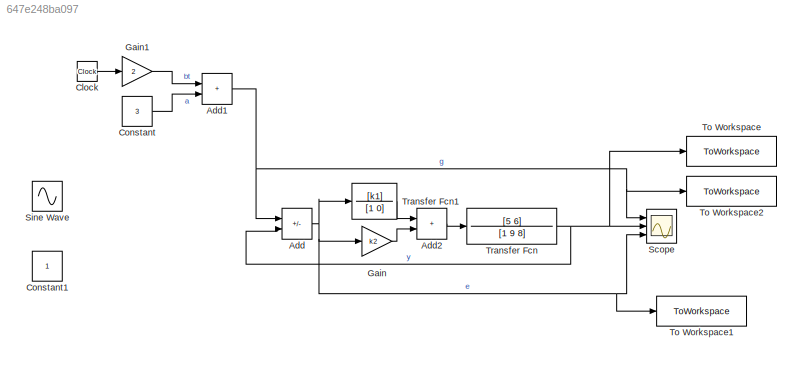
MODEL slx_647e248ba097
KIND model
CONFIG AbsTol = auto
CONFIG EnableMultiTasking = off
CONFIG FixedStep = 0.001
CONFIG MaxStep = auto
CONFIG MinStep = auto
CONFIG RelTol = 1e-3
CONFIG SampleTimeConstraint = Unconstrained
CONFIG SolverName = FixedStepAuto
CONFIG StartTime = 0.0
CONFIG StopTime = 10.0
BLOCK [Sum] Add
  IconShape = rectangular
  Inputs = +-
  Ports = [2, 1]
BLOCK [Sum] Add1
  IconShape = rectangular
  Ports = [2, 1]
BLOCK [Sum] Add2
  IconShape = rectangular
  Ports = [2, 1]
BLOCK [Clock] Clock
BLOCK [Constant] Constant
  SampleTime = -1
  Value = 3
BLOCK [Constant] Constant1
  SampleTime = -1
BLOCK [Gain] Gain
  Gain = k2
BLOCK [Gain] Gain1
  Gain = 2
BLOCK [Scope] Scope
  Floating = off
  NumInputPorts = 3
  Ports = [3]
  ScopeSpecificationString = Simulink.scopes.TimeScopeBlockCfg('CurrentConfiguration', extmgr.ConfigurationSet(extmgr.Configuration('Core','General UI',true),extmgr.Configuration('Core','Source UI',true),extmgr.Configuration('Sources','WiredSimulink',true),extmgr.Configuration('Visuals','Time Domain',true,'SerializedDisplays',{struct('MinYLimReal','-5.375','MaxYLimReal','48.375','YLabelReal','','MinYLimMag','0.00000','MaxYLim...<+1351ch>
BLOCK [Sin] Sine Wave
  Amplitude = 2
  Phase = 2
  Ports = [0, 1]
  SampleTime = 0
BLOCK [ToWorkspace] To Workspace
  FixptAsFi = on
  MaxDataPoints = inf
  Ports = [1]
  SampleTime = -1
  SaveFormat = Timeseries
  VariableName = y
BLOCK [ToWorkspace] To Workspace1
  FixptAsFi = on
  MaxDataPoints = inf
  Ports = [1]
  SampleTime = -1
  SaveFormat = Timeseries
  VariableName = e
BLOCK [ToWorkspace] To Workspace2
  FixptAsFi = on
  MaxDataPoints = inf
  Ports = [1]
  SampleTime = -1
  SaveFormat = Timeseries
  VariableName = g
BLOCK [TransferFcn] Transfer Fcn
  Denominator = [1 9 8]
  Numerator = [5 6]
BLOCK [TransferFcn] Transfer Fcn1
  Denominator = [1 0]
  Numerator = [k1]
NET Add1:1 -> Add:1, Scope:1, To Workspace2:1
LINE Add2:1 -> Transfer Fcn:1
NET Add:1 -> Gain:1, Scope:3, To Workspace1:1, Transfer Fcn1:1
LINE Clock:1 -> Gain1:1
LINE Constant:1 -> Add1:2
LINE Gain1:1 -> Add1:1
LINE Gain:1 -> Add2:2
LINE Transfer Fcn1:1 -> Add2:1
NET Transfer Fcn:1 -> Add:2, Scope:2, To Workspace:1
note: NET lines group one-source signal fan-out (src -> all destinations, sorted); 1:1 wires keep LINE
